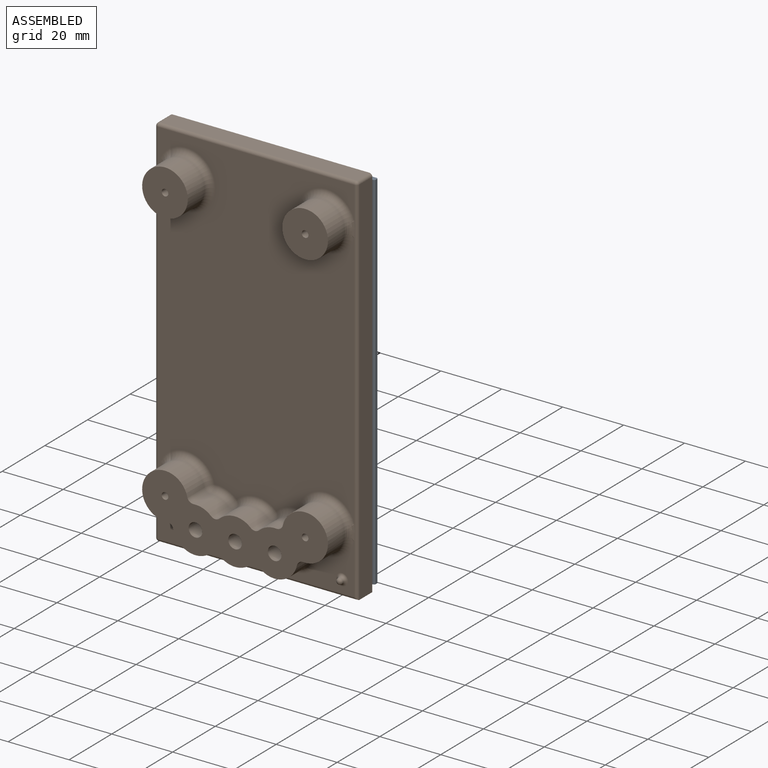
[diagram: assembled view]
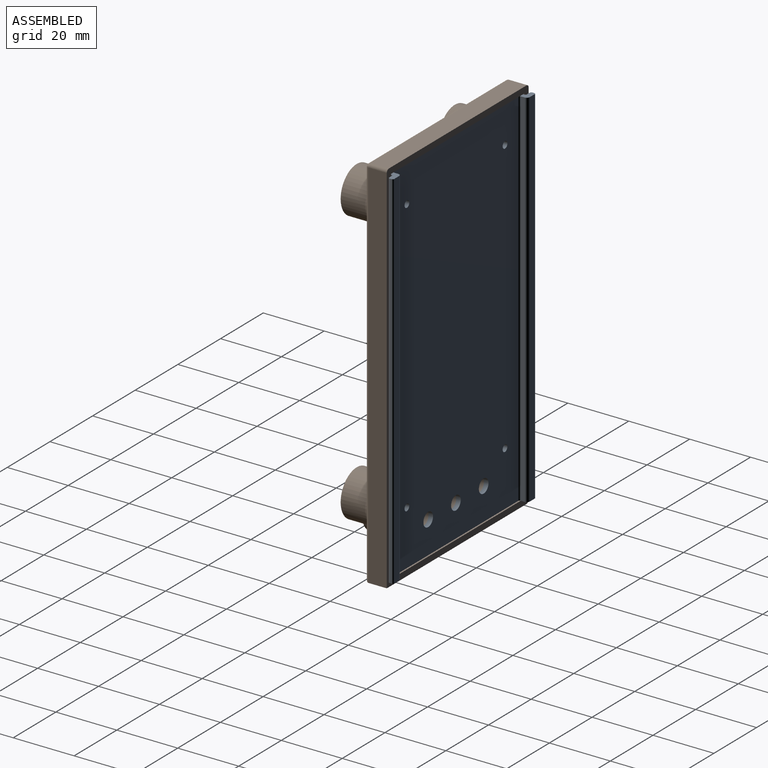
[diagram: assembled view, second angle]
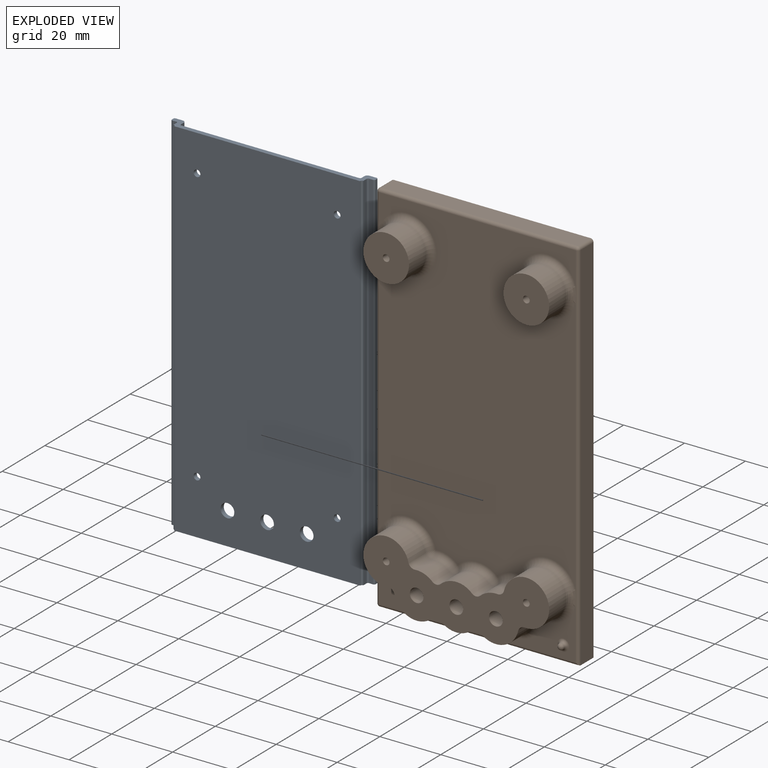
[diagram: exploded view]
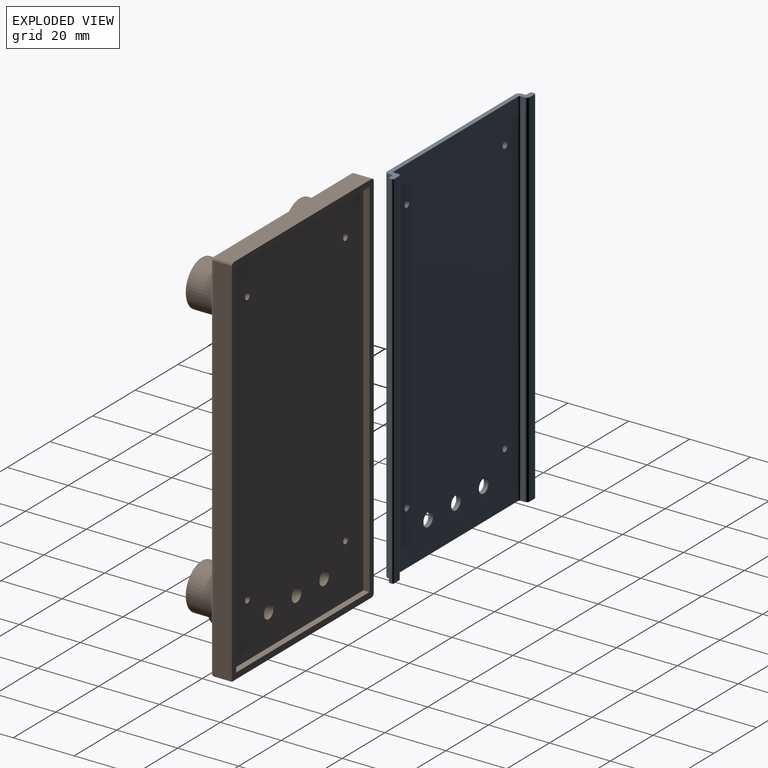
[diagram: exploded view, second angle]
ASSEMBLY  parts=2 mates=3
PART A: 33 faces, bbox 66.9x4.3x120 mm
  f0: cylinder r=1mm len=120mm, axis (0,0,1), area 188.5mm2, adj f1,f21,f22,f23
  f1: plane 120x2.3mm, normal (0,1,0), area 276mm2, adj f0,f2,f21,f23
  f2: cylinder r=0.5mm len=120mm, axis (0,0,1), area 94.2mm2, adj f1,f3,f21,f23
  f3: plane 120x0.64mm, normal (1,0,0), area 76.8mm2, adj f2,f4,f21,f23
  f4: cylinder r=0.5mm len=120mm, axis (0,0,1), area 94.2mm2, adj f3,f5,f21,f23
  f5: plane 120x1.3mm, normal (0,-1,0), area 156mm2, adj f4,f6,f21,f23
  f6: cylinder r=0.5mm len=120mm, axis (0,0,1), area 94.2mm2, adj f5,f7,f21,f23
  f7: plane 120x1.51mm, normal (1,0,0), area 181.2mm2, adj f6,f8,f21,f23
  f8: cylinder r=0.64mm len=120mm, axis (0,0,1), area 120.6mm2, adj f7,f9,f21,f23
  f9: plane 120x61.02mm, normal (0,-1,0), area 7259.5mm2, adj f8,f10,f21,f23,f26,f27,f28,f29
  f10: cylinder r=0.64mm len=120mm, axis (0,0,1), area 120.6mm2, adj f9,f11,f21,f23
  f11: plane 120x1.51mm, normal (-1,0,0), area 181.2mm2, adj f10,f12,f21,f23
  f12: cylinder r=0.5mm len=120mm, axis (0,0,1), area 94.2mm2, adj f11,f13,f21,f23
  f13: plane 120x1.3mm, normal (0,-1,0), area 156mm2, adj f12,f14,f21,f23
  f14: cylinder r=0.5mm len=120mm, axis (0,0,1), area 94.2mm2, adj f13,f15,f21,f23
  f15: plane 120x0.64mm, normal (-1,0,0), area 76.8mm2, adj f14,f16,f21,f23
  f16: cylinder r=0.5mm len=120mm, axis (0,0,1), area 94.2mm2, adj f15,f17,f21,f23
  f17: plane 120x2.3mm, normal (0,1,0), area 276mm2, adj f16,f18,f21,f23
  f18: cylinder r=1mm len=120mm, axis (0,0,1), area 188.5mm2, adj f17,f19,f21,f23
  f19: plane 120x1.29mm, normal (1,0,0), area 154.8mm2, adj f18,f20,f21,f23
  f20: cylinder r=0.5mm len=120mm, axis (0,0,1), area 94.2mm2, adj f19,f21,f23,f24
  f21: plane 66.9x4.29mm, normal (0,0,1), area 108.3mm2, adj f0,f1,f2,f3,f4,f5,f6,f7
  f22: plane 120x1.29mm, normal (-1,0,0), area 154.8mm2, adj f0,f21,f23,f25
  f23: plane 66.9x4.29mm, normal (0,0,-1), area 108.3mm2, adj f0,f1,f2,f3,f4,f5,f6,f7
  f24: plane 120x58.3mm, normal (0,1,0), area 6933.1mm2, adj f20,f21,f23,f25,f26,f27,f28,f29
  f25: cylinder r=0.5mm len=120mm, axis (0,0,1), area 94.2mm2, adj f21,f22,f23,f24
  f26: cylinder r=1.1mm len=2.2mm, axis (0,-1,0), area 10.4mm2, adj f9,f24
  f27: cylinder r=1.1mm len=2.2mm, axis (0,-1,0), area 10.4mm2, adj f9,f24
  f28: cylinder r=1.1mm len=2.2mm, axis (0,-1,0), area 10.4mm2, adj f9,f24
  f29: cylinder r=1.1mm len=2.2mm, axis (0,-1,0), area 10.4mm2, adj f9,f24
  f30: cylinder r=2.25mm len=4.5mm, axis (0,-1,0), area 21.2mm2, adj f9,f24
  f31: cylinder r=2.25mm len=4.5mm, axis (0,-1,0), area 21.2mm2, adj f9,f24
  f32: cylinder r=2.25mm len=4.5mm, axis (0,-1,0), area 21.2mm2, adj f9,f24
PART B: 76 faces, bbox 69x17x124.2 mm
  f0: plane 64.5x17.33mm, normal (0,-1,0), area 361.3mm2, adj f45,f48,f49,f61,f62,f65,f66,f69
  f1: plane 62.5x2mm, normal (0,0,1), area 125mm2, adj f2,f8,f9,f10
  f2: plane 120.2x2mm, normal (1,0,0), area 240.4mm2, adj f1,f3,f9,f10
  f3: plane 62.5x2mm, normal (0,0,-1), area 125mm2, adj f2,f8,f9,f10
  f4: plane 64.5x6mm, normal (0,0,1), area 387mm2, adj f9,f40,f42,f43
  f5: plane 122.2x6mm, normal (-1,0,0), area 733.2mm2, adj f9,f40,f44,f45
  f6: plane 65.5x6mm, normal (0,0,-1), area 393mm2, adj f7,f9,f44,f49
  f7: plane 123.2x6mm, normal (1,0,0), area 739.2mm2, adj f6,f9,f43,f48
  f8: plane 120.2x2mm, normal (-1,0,0), area 240.4mm2, adj f1,f3,f9,f10
  f9: plane 124.2x66.5mm, normal (0,1,0), area 746.2mm2, adj f1,f2,f3,f4,f5,f6,f7,f8
  f10: plane 120.2x62.5mm, normal (0,1,0), area 7449.6mm2, adj f1,f2,f3,f8,f12,f13,f14,f15
  f11: plane 103.67x64.5mm, normal (0,-1,0), area 5772mm2, adj f42,f45,f48,f50,f53,f54,f57,f58
  f12: cylinder r=1.1mm len=15mm, axis (0,1,0), area 103.7mm2, adj f10,f29
  f13: cylinder r=2.25mm len=15mm, axis (0,1,0), area 212.1mm2, adj f10,f27
  f14: cylinder r=2.25mm len=15mm, axis (0,1,0), area 212.1mm2, adj f10,f27
  f15: cylinder r=1.1mm len=15mm, axis (0,1,0), area 103.7mm2, adj f10,f27
  f16: cylinder r=2.25mm len=15mm, axis (0,1,0), area 212.1mm2, adj f10,f27
  f17: cylinder r=1.1mm len=15mm, axis (0,1,0), area 103.7mm2, adj f10,f31
  f18: cylinder r=1.1mm len=15mm, axis (0,1,0), area 103.7mm2, adj f10,f27
  f19: cylinder r=7.5mm len=15mm, axis (0,1,0), area 274.2mm2, adj f27,f32,f39,f57,f59,f61
  f20: cylinder r=7.5mm len=12.45mm, axis (0,1,0), area 126.3mm2, adj f27,f38,f39,f65
  f21: cylinder r=7.5mm len=10.26mm, axis (0,1,0), area 90.4mm2, adj f27,f37,f38,f69
  f22: cylinder r=7.5mm len=12.45mm, axis (0,1,0), area 126.3mm2, adj f27,f36,f37,f66
  f23: cylinder r=7.5mm len=15mm, axis (0,1,0), area 274.2mm2, adj f27,f35,f36,f58,f60,f62
  f24: cylinder r=7.5mm len=8mm, axis (0,1,0), area 49.8mm2, adj f27,f34,f35,f54
  f25: cylinder r=7.5mm len=10.26mm, axis (0,1,0), area 90.4mm2, adj f27,f33,f34,f50
  f26: cylinder r=7.5mm len=8mm, axis (0,1,0), area 49.8mm2, adj f27,f32,f33,f53
  f27: plane 61x22.4mm, normal (0,-1,0), area 786.9mm2, adj f13,f14,f15,f16,f18,f19,f20,f21
  f28: cylinder r=7.5mm len=15mm, axis (0,1,0), area 377mm2, adj f29,f72,f73
  f29: plane 15x15mm, normal (0,-1,0), area 172.9mm2, adj f12,f28
  f30: cylinder r=7.5mm len=15mm, axis (0,1,0), area 377mm2, adj f31,f70,f71
  f31: plane 15x15mm, normal (0,-1,0), area 172.9mm2, adj f17,f30
  f32: cylinder r=2mm len=8mm, axis (0,-1,0), area 22.8mm2, adj f19,f26,f27,f55
  f33: cylinder r=2mm len=8mm, axis (0,-1,0), area 24.1mm2, adj f25,f26,f27,f51
  f34: cylinder r=2mm len=8mm, axis (0,-1,0), area 24.1mm2, adj f24,f25,f27,f52
  f35: cylinder r=2mm len=8mm, axis (0,-1,0), area 22.8mm2, adj f23,f24,f27,f56
  f36: cylinder r=2mm len=8mm, axis (0,-1,0), area 22.8mm2, adj f22,f23,f27,f64
  f37: cylinder r=2mm len=8mm, axis (0,-1,0), area 24.1mm2, adj f21,f22,f27,f68
  f38: cylinder r=2mm len=8mm, axis (0,-1,0), area 24.1mm2, adj f20,f21,f27,f67
  f39: cylinder r=2mm len=8mm, axis (0,-1,0), area 22.8mm2, adj f19,f20,f27,f63
  f40: cylinder r=1mm len=6mm, axis (0,-1,0), area 9.4mm2, adj f4,f5,f9,f41
  f41: sphere r=1mm, area 1.6mm2, adj f40,f42,f45
  f42: cylinder r=1mm len=64.5mm, axis (1,0,0), area 101.3mm2, adj f4,f11,f41,f46
  f43: cylinder r=1mm len=6mm, axis (0,1,0), area 9.4mm2, adj f4,f7,f9,f46
  f44: cylinder r=1mm len=6mm, axis (0,1,0), area 9.4mm2, adj f5,f6,f9,f47
  f45: cylinder r=1mm len=122.2mm, axis (0,0,1), area 191.7mm2, adj f0,f5,f11,f41,f47,f59,f73
  f46: sphere r=1mm, area 1.6mm2, adj f42,f43,f48
  f47: sphere r=1mm, area 1.6mm2, adj f44,f45,f49
  f48: cylinder r=1mm len=123.2mm, axis (0,0,-1), area 192.1mm2, adj f0,f7,f11,f46,f49,f60,f71
  f49: cylinder r=1mm len=65.5mm, axis (-1,0,0), area 102.3mm2, adj f0,f6,f47,f48
  f50: torus R=9.5mm, axis (0,-1,0), area 38.9mm2, adj f11,f25,f51,f52
  f51: sphere r=2mm, area 6mm2, adj f33,f50,f53
  f52: sphere r=2mm, area 6mm2, adj f34,f50,f54
  f53: torus R=9.5mm, axis (0,-1,0), area 21.5mm2, adj f11,f26,f51,f55
  f54: torus R=9.5mm, axis (0,-1,0), area 21.5mm2, adj f11,f24,f52,f56
  f55: sphere r=2mm, area 5.7mm2, adj f32,f53,f57
  f56: sphere r=2mm, area 5.7mm2, adj f35,f54,f58
  f57: torus R=9.5mm, axis (0,-1,0), area 70.9mm2, adj f11,f19,f55,f59
  f58: torus R=9.5mm, axis (0,-1,0), area 68.5mm2, adj f11,f23,f56,f60
  f59: bspline ~4.68x2.2mm, area 8.9mm2, adj f19,f45,f57,f61
  f60: bspline ~6.48x2.29mm, area 13.3mm2, adj f23,f48,f58,f62
  f61: torus R=9.5mm, axis (0,-1,0), area 38mm2, adj f0,f19,f59,f63
  f62: torus R=9.5mm, axis (0,-1,0), area 35.5mm2, adj f0,f23,f60,f64
  f63: sphere r=2mm, area 5.7mm2, adj f39,f61,f65
  f64: sphere r=2mm, area 5.7mm2, adj f36,f62,f66
  f65: torus R=9.5mm, axis (0,-1,0), area 54.4mm2, adj f0,f20,f63,f67
  f66: torus R=9.5mm, axis (0,-1,0), area 54.4mm2, adj f0,f22,f64,f68
  f67: sphere r=2mm, area 6mm2, adj f38,f65,f69
  f68: sphere r=2mm, area 6mm2, adj f37,f66,f69
  f69: torus R=9.5mm, axis (0,-1,0), area 38.9mm2, adj f0,f21,f67,f68
  f70: torus R=9.5mm, axis (0,-1,0), area 148.3mm2, adj f11,f30,f71
  f71: bspline ~6.48x2.29mm, area 13.3mm2, adj f30,f48,f70
  f72: torus R=9.5mm, axis (0,-1,0), area 153.3mm2, adj f11,f28,f73
  f73: bspline ~4.68x2.2mm, area 8.9mm2, adj f28,f45,f72
  f74: sphere r=1mm, area 6.3mm2, adj f75
  f75: torus R=2mm, axis (0,-1,0), area 13.5mm2, adj f0,f74
PLACE A t=(-204.9,-91.61,-10.81)mm
PLACE B t=(-236.25,-89.61,-10.81)mm
MATE planar A.f7 <-> B.f8  axis (1,0,0) through (-173.75,-90.21,49.19)mm
MATE planar A.f0 <-> B.f1  axis (0,0,-1) through (-174.25,-88.32,-10.81)mm
MATE planar A.f9 <-> B.f10  axis (0,-1,0) through (-204.9,-91.61,49.51)mm
